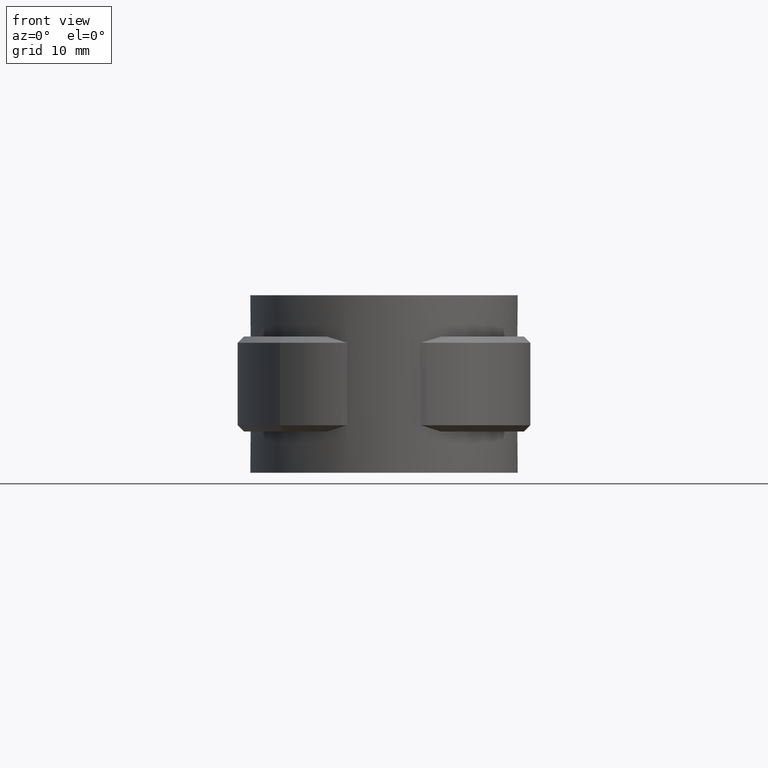
[diagram: clean part render]
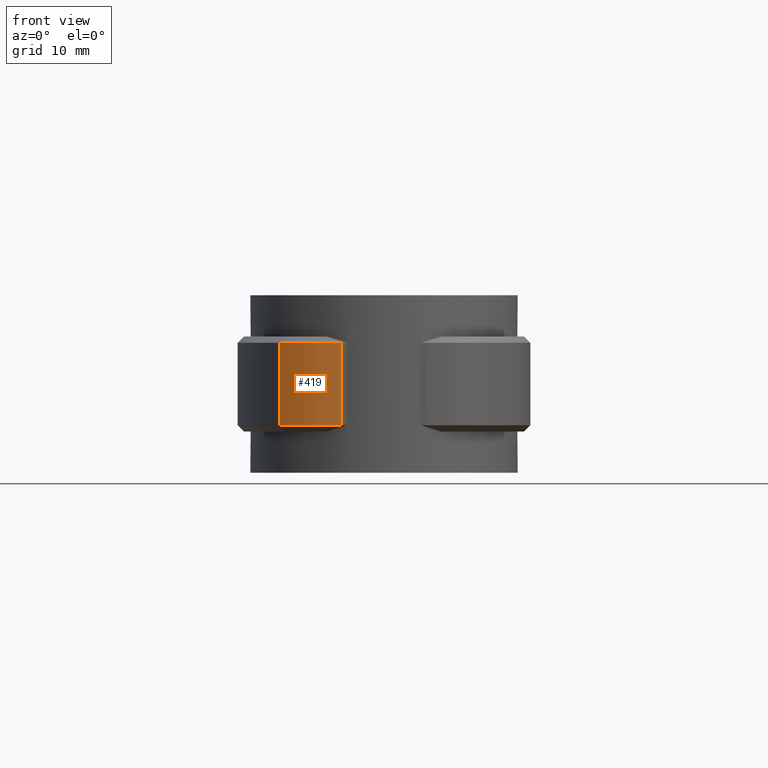
[diagram: same view with one face highlighted and labeled with its STEP entity id]
A machine part, front view. The second image highlights one B-rep face of the part: STEP entity #419.
In plain terms, the highlighted cylindrical surface (partial cylindrical patch) has radius 13.6 mm, axis along (0, 0, -1).
Its self-contained STEP definition (entity closure, byte-faithful):
#419 = ADVANCED_FACE( '', ( #743 ), #744, .T. );
#743 = FACE_OUTER_BOUND( '', #1581, .T. );
#744 = CYLINDRICAL_SURFACE( '', #1582, 13.6000000000000 );
#1581 = EDGE_LOOP( '', ( #3428, #3429, #3430, #3431 ) );
#1582 = AXIS2_PLACEMENT_3D( '', #3432, #3433, #3434 );
#3428 = ORIENTED_EDGE( '', *, *, #4641, .F. );
#3429 = ORIENTED_EDGE( '', *, *, #4613, .T. );
#3430 = ORIENTED_EDGE( '', *, *, #4600, .T. );
#3431 = ORIENTED_EDGE( '', *, *, #4639, .T. );
#3432 = CARTESIAN_POINT( '', ( -6.74778667416212, -6.68000000000001, -20.0000000000000 ) );
#3433 = DIRECTION( '', ( 0.000000000000000, 0.000000000000000, -1.00000000000000 ) );
#3434 = DIRECTION( '', ( 0.275275955036381, 0.961365252429486, 0.000000000000000 ) );
#4600 = EDGE_CURVE( '', #5402, #5403, #5404, .T. );
#4613 = EDGE_CURVE( '', #5423, #5402, #5424, .F. );
#4639 = EDGE_CURVE( '', #5403, #5457, #5460, .T. );
#4641 = EDGE_CURVE( '', #5423, #5457, #5462, .T. );
#5402 = VERTEX_POINT( '', #8017 );
#5403 = VERTEX_POINT( '', #8018 );
#5404 = LINE( '', #8019, #8020 );
#5423 = VERTEX_POINT( '', #8055 );
#5424 = CIRCLE( '', #8056, 13.6000000000000 );
#5457 = VERTEX_POINT( '', #8098 );
#5460 = CIRCLE( '', #8102, 13.6000000000000 );
#5462 = LINE( '', #8105, #8106 );
#8017 = CARTESIAN_POINT( '', ( -6.74778667416212, -20.2800000000000, -19.0000000000000 ) );
#8018 = CARTESIAN_POINT( '', ( -6.74778667416212, -20.2800000000000, -6.00000000000000 ) );
#8019 = CARTESIAN_POINT( '', ( -6.74778667416212, -20.2800000000000, -20.0000000000000 ) );
#8020 = VECTOR( '', #9099, 1000.00000000000 );
#8055 = CARTESIAN_POINT( '', ( -16.4128629004502, -16.2479831490258, -19.0000000000000 ) );
#8056 = AXIS2_PLACEMENT_3D( '', #9110, #9111, #9112 );
#8098 = CARTESIAN_POINT( '', ( -16.4128629004502, -16.2479831490258, -6.00000000000000 ) );
#8102 = AXIS2_PLACEMENT_3D( '', #9168, #9169, #9170 );
#8105 = CARTESIAN_POINT( '', ( -16.4128629004502, -16.2479831490258, -20.0000000000000 ) );
#8106 = VECTOR( '', #9172, 1000.00000000000 );
#9099 = DIRECTION( '', ( 0.000000000000000, 0.000000000000000, 1.00000000000000 ) );
#9110 = CARTESIAN_POINT( '', ( -6.74778667416212, -6.68000000000001, -19.0000000000000 ) );
#9111 = DIRECTION( '', ( 0.000000000000000, 0.000000000000000, -1.00000000000000 ) );
#9112 = DIRECTION( '', ( -1.00000000000000, 0.000000000000000, 0.000000000000000 ) );
#9168 = CARTESIAN_POINT( '', ( -6.74778667416212, -6.68000000000001, -6.00000000000000 ) );
#9169 = DIRECTION( '', ( 0.000000000000000, 0.000000000000000, -1.00000000000000 ) );
#9170 = DIRECTION( '', ( -1.00000000000000, 0.000000000000000, 0.000000000000000 ) );
#9172 = DIRECTION( '', ( 0.000000000000000, 0.000000000000000, 1.00000000000000 ) );